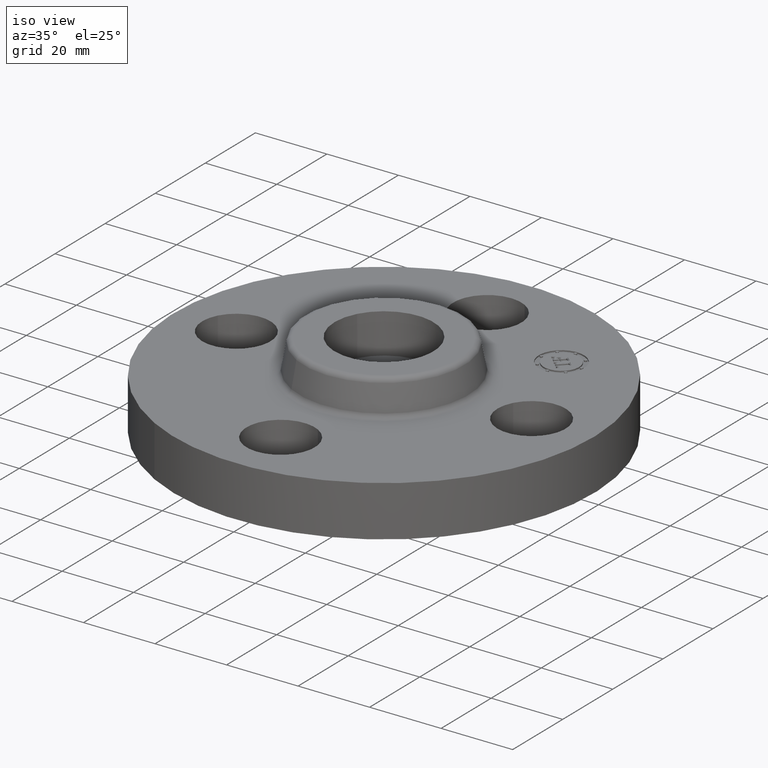
[diagram: clean part render]
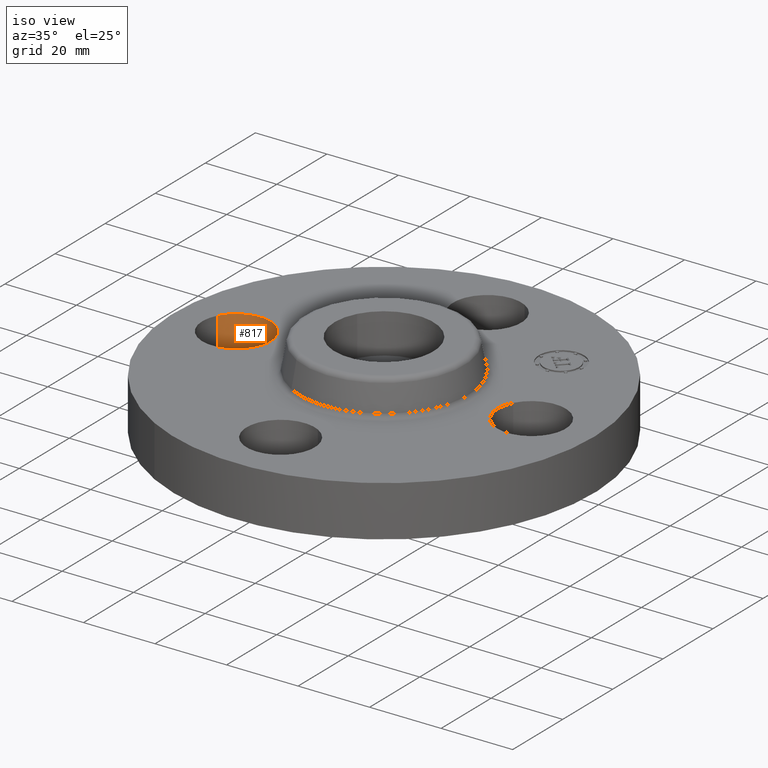
[diagram: same view with one face highlighted and labeled with its STEP entity id]
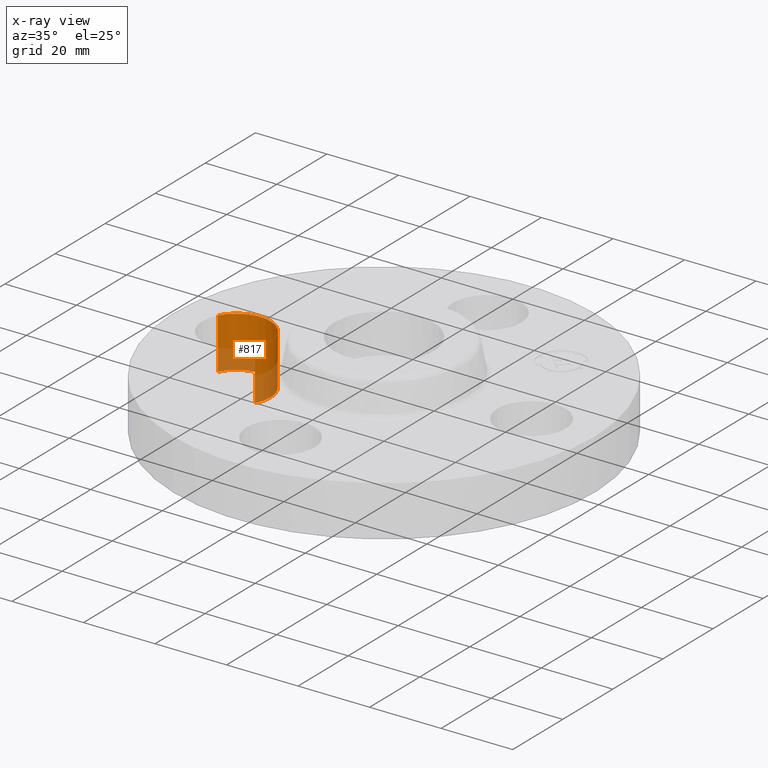
[diagram: x-ray of the same camera — body ghosted, the highlighted face saturated]
A machine part, iso view. The second image highlights one B-rep face of the part: STEP entity #817.
The next image is the same camera in x-ray: the body ghosted, the highlighted face saturated — about 38% of this face is hidden behind the body in this view.
In plain terms, the highlighted cylindrical surface (partial cylindrical patch) has radius 9.525 mm, axis along (0, -0, -1).
Its self-contained STEP definition (entity closure, byte-faithful):
#434=AXIS2_PLACEMENT_3D('Circle Axis2P3D',#432,#433,$) ;
#792=AXIS2_PLACEMENT_3D('Cylinder Axis2P3D',#789,#790,#791) ;
#427=CARTESIAN_POINT('Vertex',(-1.29590653932,-0.17978457699,0.)) ;
#429=CARTESIAN_POINT('Vertex',(-1.95409346071,0.179784576957,0.)) ;
#432=CARTESIAN_POINT('Axis2P3D Location',(-1.62500000001,-1.64823885074E-011,0.)) ;
#756=CARTESIAN_POINT('Line Origine',(-1.2959065393,-0.179784576978,0.279999999998)) ;
#760=CARTESIAN_POINT('Vertex',(-1.29590653932,-0.179784576986,0.560000000002)) ;
#763=CARTESIAN_POINT('Line Origine',(-1.95409346072,0.179784576978,0.279999999998)) ;
#767=CARTESIAN_POINT('Vertex',(-1.95409346072,0.179784576978,0.559999999987)) ;
#789=CARTESIAN_POINT('Axis2P3D Location',(-1.62500000001,-1.99005104862E-016,0.556062992128)) ;
#795=CARTESIAN_POINT('Control Point',(-1.95409346072,0.179784576978,0.560000000002)) ;
#796=CARTESIAN_POINT('Control Point',(-1.92585296541,0.231478456903,0.560000000001)) ;
#797=CARTESIAN_POINT('Control Point',(-1.88746240051,0.277627328541,0.560000000001)) ;
#798=CARTESIAN_POINT('Control Point',(-1.84036533168,0.315564920646,0.56)) ;
#799=CARTESIAN_POINT('Control Point',(-1.73383359426,0.370929207244,0.559999999998)) ;
#800=CARTESIAN_POINT('Control Point',(-1.61427677655,0.381901109851,0.559999999997)) ;
#801=CARTESIAN_POINT('Control Point',(-1.55414819117,0.375424381749,0.559999999996)) ;
#802=CARTESIAN_POINT('Control Point',(-1.43967041474,0.339243530299,0.559999999995)) ;
#803=CARTESIAN_POINT('Control Point',(-1.34737267147,0.262462400496,0.559999999993)) ;
#804=CARTESIAN_POINT('Control Point',(-1.30943507936,0.215365331668,0.559999999992)) ;
#805=CARTESIAN_POINT('Control Point',(-1.25407079277,0.108833594252,0.559999999991)) ;
#806=CARTESIAN_POINT('Control Point',(-1.24309889016,-0.0107232234563,0.55999999999)) ;
#807=CARTESIAN_POINT('Control Point',(-1.24957561826,-0.070851808838,0.559999999989)) ;
#808=CARTESIAN_POINT('Control Point',(-1.26766604399,-0.128090697052,0.559999999988)) ;
#809=CARTESIAN_POINT('Control Point',(-1.2959065393,-0.179784576977,0.559999999987)) ;
#433=DIRECTION('Axis2P3D Direction',(0.,0.,-0.0393700787402)) ;
#757=DIRECTION('Vector Direction',(0.,0.,-0.0393700787402)) ;
#764=DIRECTION('Vector Direction',(0.,0.,-0.0393700787402)) ;
#790=DIRECTION('Axis2P3D Direction',(0.,-0.,-0.0393700787402)) ;
#791=DIRECTION('Axis2P3D XDirection',(-0.0345504945626,0.0188750212049,0.)) ;
#758=VECTOR('Line Direction',#757,0.0393700787402) ;
#765=VECTOR('Line Direction',#764,0.0393700787402) ;
#812=ORIENTED_EDGE('',*,*,#769,.F.) ;
#813=ORIENTED_EDGE('',*,*,#436,.T.) ;
#814=ORIENTED_EDGE('',*,*,#762,.T.) ;
#815=ORIENTED_EDGE('',*,*,#810,.F.) ;
#817=ADVANCED_FACE('PartBody',(#816),#793,.F.) ;
#794=B_SPLINE_CURVE_WITH_KNOTS('',5,(#795,#796,#797,#798,#799,#800,#801,#802,#803,#804,#805,#806,#807,#808,#809),.UNSPECIFIED.,.F.,.U.,(6,3,3,3,6),(-14.9618350128,-7.4809175064,0.,7.4809175064,14.9618350128),.UNSPECIFIED.) ;
#435=CIRCLE('generated circle',#434,0.374999999988) ;
#793=CYLINDRICAL_SURFACE('generated cylinder',#792,0.375000000002) ;
#436=EDGE_CURVE('',#430,#428,#435,.T.) ;
#762=EDGE_CURVE('',#428,#761,#759,.F.) ;
#769=EDGE_CURVE('',#430,#768,#766,.F.) ;
#810=EDGE_CURVE('',#768,#761,#794,.T.) ;
#811=EDGE_LOOP('',(#812,#813,#814,#815)) ;
#816=FACE_OUTER_BOUND('',#811,.T.) ;
#759=LINE('Line',#756,#758) ;
#766=LINE('Line',#763,#765) ;
#428=VERTEX_POINT('',#427) ;
#430=VERTEX_POINT('',#429) ;
#761=VERTEX_POINT('',#760) ;
#768=VERTEX_POINT('',#767) ;